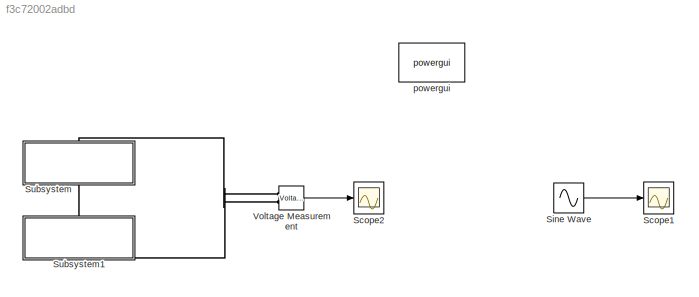
MODEL slx_f3c72002adbd
KIND model
CONFIG AbsTol = auto
CONFIG FixedStep = auto
CONFIG MaxStep = auto
CONFIG MinStep = auto
CONFIG RelTol = 1e-3
CONFIG SampleTimeConstraint = Unconstrained
CONFIG Solver = ode45
CONFIG SolverMode = Auto
CONFIG SolverName = ode45
CONFIG StartTime = 0.0
CONFIG StopTime = 0.08
BLOCK [Scope] Scope1
  DataFormat = StructureWithTime
  Floating = off
  MaxDataPoints = 5000000
  NumInputPorts = 1
  Ports = [1]
  SampleTime = 0
  SaveName = sinwave
  SaveToWorkspace = on
BLOCK [Scope] Scope2
  DataFormat = StructureWithTime
  Floating = off
  MaxDataPoints = 5000000
  NumInputPorts = 1
  Ports = [1]
  SampleTime = 0
  SaveName = OutVolt
  SaveToWorkspace = on
BLOCK [Sin] Sine Wave
  Amplitude = 60
  Frequency = 0.2*pi
  Ports = [0, 1]
  SampleTime = 0
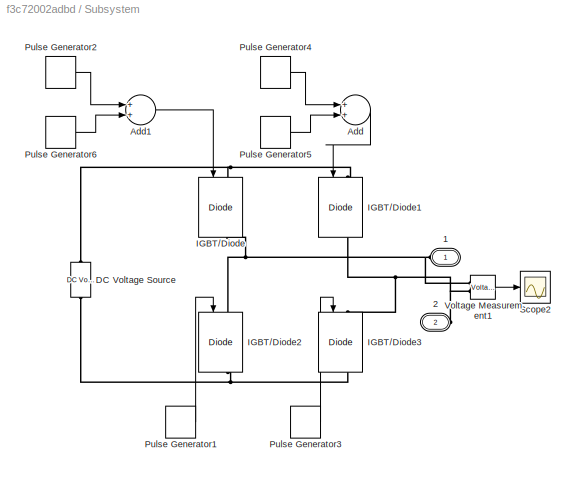
BLOCK [SubSystem] Subsystem
  Ports = [0, 0, 0, 0, 0, 1, 1]
  RequestExecContextInheritance = off
BLOCK [PMIOPort] Subsystem/1
  Port = 1
  Side = Left
  Tag = PMCPort
BLOCK [PMIOPort] Subsystem/2
  Port = 2
  Side = Right
  Tag = PMCPort
BLOCK [Sum] Subsystem/Add
  InputSameDT = off
  OutDataTypeStr = Inherit: Inherit via internal rule
  Ports = [2, 1]
  SaturateOnIntegerOverflow = off
BLOCK [Sum] Subsystem/Add1
  InputSameDT = off
  OutDataTypeStr = Inherit: Inherit via internal rule
  Ports = [2, 1]
  SaturateOnIntegerOverflow = off
BLOCK [Reference] Subsystem/DC Voltage Source  REF=powerlib/Electrical
Sources/DC Voltage Source
  Amplitude = 12
  Measurements = None
  Ports = [0, 0, 0, 0, 0, 1, 1]
  SourceBlock = powerlib/Electrical\nSources/DC Voltage Source
  SourceType = DC Voltage Source
BLOCK [Reference] Subsystem/IGBT//Diode  REF=powerlib/Power
Electronics/IGBT//Diode
  Cs = inf
  Measurements = on
  Ports = [1, 1, 0, 0, 0, 1, 1]
  Ron = 1e-3
  Rs = 1e5
  SourceBlock = powerlib/Power\nElectronics/IGBT//Diode
  SourceType = IGBT/Diode
BLOCK [Reference] Subsystem/IGBT//Diode1  REF=powerlib/Power
Electronics/IGBT//Diode
  Cs = inf
  Measurements = on
  Ports = [1, 1, 0, 0, 0, 1, 1]
  Ron = 1e-3
  Rs = 1e5
  SourceBlock = powerlib/Power\nElectronics/IGBT//Diode
  SourceType = IGBT/Diode
BLOCK [Reference] Subsystem/IGBT//Diode2  REF=powerlib/Power
Electronics/IGBT//Diode
  Cs = inf
  Measurements = on
  Ports = [1, 1, 0, 0, 0, 1, 1]
  Ron = 1e-3
  Rs = 1e5
  SourceBlock = powerlib/Power\nElectronics/IGBT//Diode
  SourceType = IGBT/Diode
BLOCK [Reference] Subsystem/IGBT//Diode3  REF=powerlib/Power
Electronics/IGBT//Diode
  Cs = inf
  Measurements = on
  Ports = [1, 1, 0, 0, 0, 1, 1]
  Ron = 1e-3
  Rs = 1e5
  SourceBlock = powerlib/Power\nElectronics/IGBT//Diode
  SourceType = IGBT/Diode
BLOCK [DiscretePulseGenerator] Subsystem/Pulse Generator1
  Period = t
  PhaseDelay = ((180+a)*t)/360
  Ports = [0, 1]
  PulseType = Time based
  PulseWidth = 50-((5*a)/9)
BLOCK [DiscretePulseGenerator] Subsystem/Pulse Generator2
  Period = t
  Ports = [0, 1]
  PulseType = Time based
  PulseWidth = 50+((5*a)/18)
BLOCK [DiscretePulseGenerator] Subsystem/Pulse Generator3
  Period = t
  PhaseDelay = (a*t)/360
  Ports = [0, 1]
  PulseType = Time based
  PulseWidth = 50-((5*a)/9)
BLOCK [DiscretePulseGenerator] Subsystem/Pulse Generator4
  Period = t
  Ports = [0, 1]
  PulseType = Time based
  PulseWidth = a/3.6
BLOCK [DiscretePulseGenerator] Subsystem/Pulse Generator5
  Period = t
  PhaseDelay = (180-a)*(t/360)
  Ports = [0, 1]
  PulseType = Time based
  PulseWidth = 50+((5*a)/18)
BLOCK [DiscretePulseGenerator] Subsystem/Pulse Generator6
  Period = t
  PhaseDelay = (360-a)*(t/360)
  Ports = [0, 1]
  PulseType = Time based
  PulseWidth = a/3.6
BLOCK [Scope] Subsystem/Scope2
  DataFormat = StructureWithTime
  Floating = off
  NumInputPorts = 1
  Ports = [1]
  SampleTime = 0
  SaveName = ScopeData6
  ZoomMode = yonly
BLOCK [Reference] Subsystem/Voltage Measurement1  REF=powerlib/Measurements/Voltage Measurement
  OutputType = Complex
  PSBequivalent = 0
  PhasorSimulation = off
  Ports = [0, 1, 0, 0, 0, 2]
  SourceBlock = powerlib/Measurements/Voltage Measurement
  SourceType = Voltage Measurement
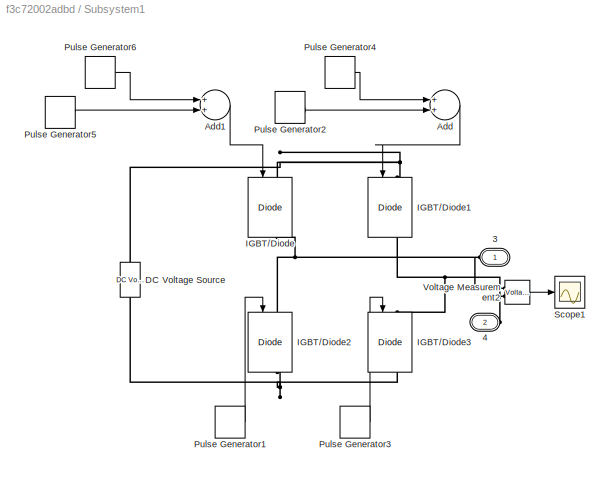
BLOCK [SubSystem] Subsystem1
  Ports = [0, 0, 0, 0, 0, 1, 1]
  RequestExecContextInheritance = off
BLOCK [PMIOPort] Subsystem1/3
  Port = 1
  Side = Left
  Tag = PMCPort
BLOCK [PMIOPort] Subsystem1/4
  Port = 2
  Side = Right
  Tag = PMCPort
BLOCK [Sum] Subsystem1/Add
  InputSameDT = off
  OutDataTypeStr = Inherit: Inherit via internal rule
  Ports = [2, 1]
  SaturateOnIntegerOverflow = off
BLOCK [Sum] Subsystem1/Add1
  InputSameDT = off
  OutDataTypeStr = Inherit: Inherit via internal rule
  Ports = [2, 1]
  SaturateOnIntegerOverflow = off
BLOCK [Reference] Subsystem1/DC Voltage Source  REF=powerlib/Electrical
Sources/DC Voltage Source
  Amplitude = 12
  Measurements = None
  Ports = [0, 0, 0, 0, 0, 1, 1]
  SourceBlock = powerlib/Electrical\nSources/DC Voltage Source
  SourceType = DC Voltage Source
BLOCK [Reference] Subsystem1/IGBT//Diode  REF=powerlib/Power
Electronics/IGBT//Diode
  Cs = inf
  Measurements = on
  Ports = [1, 1, 0, 0, 0, 1, 1]
  Ron = 1e-3
  Rs = 1e5
  SourceBlock = powerlib/Power\nElectronics/IGBT//Diode
  SourceType = IGBT/Diode
BLOCK [Reference] Subsystem1/IGBT//Diode1  REF=powerlib/Power
Electronics/IGBT//Diode
  Cs = inf
  Measurements = on
  Ports = [1, 1, 0, 0, 0, 1, 1]
  Ron = 1e-3
  Rs = 1e5
  SourceBlock = powerlib/Power\nElectronics/IGBT//Diode
  SourceType = IGBT/Diode
BLOCK [Reference] Subsystem1/IGBT//Diode2  REF=powerlib/Power
Electronics/IGBT//Diode
  Cs = inf
  Measurements = on
  Ports = [1, 1, 0, 0, 0, 1, 1]
  Ron = 1e-3
  Rs = 1e5
  SourceBlock = powerlib/Power\nElectronics/IGBT//Diode
  SourceType = IGBT/Diode
BLOCK [Reference] Subsystem1/IGBT//Diode3  REF=powerlib/Power
Electronics/IGBT//Diode
  Cs = inf
  Measurements = on
  Ports = [1, 1, 0, 0, 0, 1, 1]
  Ron = 1e-3
  Rs = 1e5
  SourceBlock = powerlib/Power\nElectronics/IGBT//Diode
  SourceType = IGBT/Diode
BLOCK [DiscretePulseGenerator] Subsystem1/Pulse Generator1
  Period = t
  PhaseDelay = ((180+b)*t)/360
  Ports = [0, 1]
  PulseType = Time based
  PulseWidth = 50-((5*b)/9)
BLOCK [DiscretePulseGenerator] Subsystem1/Pulse Generator2
  Period = t
  PhaseDelay = (180-b)*(t/360)
  Ports = [0, 1]
  PulseType = Time based
  PulseWidth = 50+((5*b)/18)
BLOCK [DiscretePulseGenerator] Subsystem1/Pulse Generator3
  Period = t
  PhaseDelay = (b*t)/360
  Ports = [0, 1]
  PulseType = Time based
  PulseWidth = 50-((5*b)/9)
BLOCK [DiscretePulseGenerator] Subsystem1/Pulse Generator4
  Period = t
  Ports = [0, 1]
  PulseType = Time based
  PulseWidth = b/3.6
BLOCK [DiscretePulseGenerator] Subsystem1/Pulse Generator5
  Period = t
  PhaseDelay = (360-b)*(t/360)
  Ports = [0, 1]
  PulseType = Time based
  PulseWidth = b/3.6
BLOCK [DiscretePulseGenerator] Subsystem1/Pulse Generator6
  Period = t
  Ports = [0, 1]
  PulseType = Time based
  PulseWidth = 50+((5*b)/18)
BLOCK [Scope] Subsystem1/Scope1
  DataFormat = StructureWithTime
  Floating = off
  NumInputPorts = 1
  Ports = [1]
  SampleTime = 0
  SaveName = ScopeData5
BLOCK [Reference] Subsystem1/Voltage Measurement2  REF=powerlib/Measurements/Voltage Measurement
  OutputType = Complex
  PSBequivalent = 0
  PhasorSimulation = off
  Ports = [0, 1, 0, 0, 0, 2]
  SourceBlock = powerlib/Measurements/Voltage Measurement
  SourceType = Voltage Measurement
BLOCK [Reference] Voltage Measurement  REF=powerlib/Measurements/Voltage Measurement
  OutputType = Complex
  PSBequivalent = 0
  PhasorSimulation = off
  Ports = [0, 1, 0, 0, 0, 2]
  SourceBlock = powerlib/Measurements/Voltage Measurement
  SourceType = Voltage Measurement
BLOCK [Reference] powergui  REF=powerlib/powergui
  DisableRonSwitches = off
  DisableSnubberDevices = off
  DisableVfSwitches = off
  DisplayEquations = off
  DisplayStyle = 2
  EnableUseOfTLC = off
  ErrMax = 1e-4
  Frange = [0:2:500]
  FreqAxis = off
  FunctionMessages = off
  HookPort = off
  Interpol = off
  Iterations = 50
  MaxFrequency = 1000
  Pbase = 100e6
  Ports = []
  Priority = 1
  ResistiveCurrentMeasurement = off
  RestoreLinks = warning
  RmsSteady = 1
  SPID = off
  SampleTime = 50e-6
  ShowGrid = off
  SolverType = Tustin/Backward Euler (TBE)
  SourceBlock = powerlib/powergui
  SourceType = PSB option menu block
  StartTime = 0.01
  SwTol = 0
  Ts = 100
  UnitsV = kV
  UnitsW = MW
  UserDataPersistent = on
  Xlog = on
  Ylog = off
  ZoomFFT = off
  buscounter = 0
  cycles = 2
  display = off
  echomessages = off
  frequency = 60
  frequencyindice = 0
  frequencyindicesteady = 1
  fundamental = 50
  methode = off
  save = off
  structure = OutVolt
  variable = ZData
  x0status = blocks
LINE Sine Wave:1 -> Scope1:1
LINE Subsystem/Add1:1 -> Subsystem/IGBT//Diode:1
LINE Subsystem/Add:1 -> Subsystem/IGBT//Diode1:1
LINE Subsystem/Pulse Generator1:1 -> Subsystem/IGBT//Diode2:1
LINE Subsystem/Pulse Generator2:1 -> Subsystem/Add1:1
LINE Subsystem/Pulse Generator3:1 -> Subsystem/IGBT//Diode3:1
LINE Subsystem/Pulse Generator4:1 -> Subsystem/Add:1
LINE Subsystem/Pulse Generator5:1 -> Subsystem/Add:2
LINE Subsystem/Pulse Generator6:1 -> Subsystem/Add1:2
LINE Subsystem/Voltage Measurement1:1 -> Subsystem/Scope2:1
LINE Subsystem1/Add1:1 -> Subsystem1/IGBT//Diode:1
LINE Subsystem1/Add:1 -> Subsystem1/IGBT//Diode1:1
LINE Subsystem1/Pulse Generator1:1 -> Subsystem1/IGBT//Diode2:1
LINE Subsystem1/Pulse Generator2:1 -> Subsystem1/Add:2
LINE Subsystem1/Pulse Generator3:1 -> Subsystem1/IGBT//Diode3:1
LINE Subsystem1/Pulse Generator4:1 -> Subsystem1/Add:1
LINE Subsystem1/Pulse Generator5:1 -> Subsystem1/Add1:2
LINE Subsystem1/Pulse Generator6:1 -> Subsystem1/Add1:1
LINE Subsystem1/Voltage Measurement2:1 -> Subsystem1/Scope1:1
LINE Voltage Measurement:1 -> Scope2:1
PNET net1: Subsystem/1:RConn1 -- Subsystem/IGBT//Diode2:LConn1 -- Subsystem/IGBT//Diode:RConn1 -- Subsystem/Voltage Measurement1:LConn1
PNET net2: Subsystem/2:RConn1 -- Subsystem/IGBT//Diode1:RConn1 -- Subsystem/IGBT//Diode3:LConn1 -- Subsystem/Voltage Measurement1:LConn2
PNET net3: Subsystem/DC Voltage Source:LConn1 -- Subsystem/IGBT//Diode2:RConn1 -- Subsystem/IGBT//Diode3:RConn1
PNET net4: Subsystem/DC Voltage Source:RConn1 -- Subsystem/IGBT//Diode1:LConn1 -- Subsystem/IGBT//Diode:LConn1
PNET net5: Subsystem1/3:RConn1 -- Subsystem1/IGBT//Diode2:LConn1 -- Subsystem1/IGBT//Diode:RConn1 -- Subsystem1/Voltage Measurement2:LConn1
PNET net6: Subsystem1/4:RConn1 -- Subsystem1/IGBT//Diode1:RConn1 -- Subsystem1/IGBT//Diode3:LConn1 -- Subsystem1/Voltage Measurement2:LConn2
PNET net7: Subsystem1/DC Voltage Source:LConn1 -- Subsystem1/IGBT//Diode2:RConn1 -- Subsystem1/IGBT//Diode3:RConn1
PNET net8: Subsystem1/DC Voltage Source:RConn1 -- Subsystem1/IGBT//Diode1:LConn1 -- Subsystem1/IGBT//Diode:LConn1
PLINE Subsystem1:LConn1 -- Subsystem:RConn1
PLINE Subsystem1:RConn1 -- Voltage Measurement:LConn2
PLINE Subsystem:LConn1 -- Voltage Measurement:LConn1
note: PNET lines group multi-terminal physical nets as a canonical sorted terminal list (undirected conserving connections); 2-terminal nets keep the pairwise PLINE form
